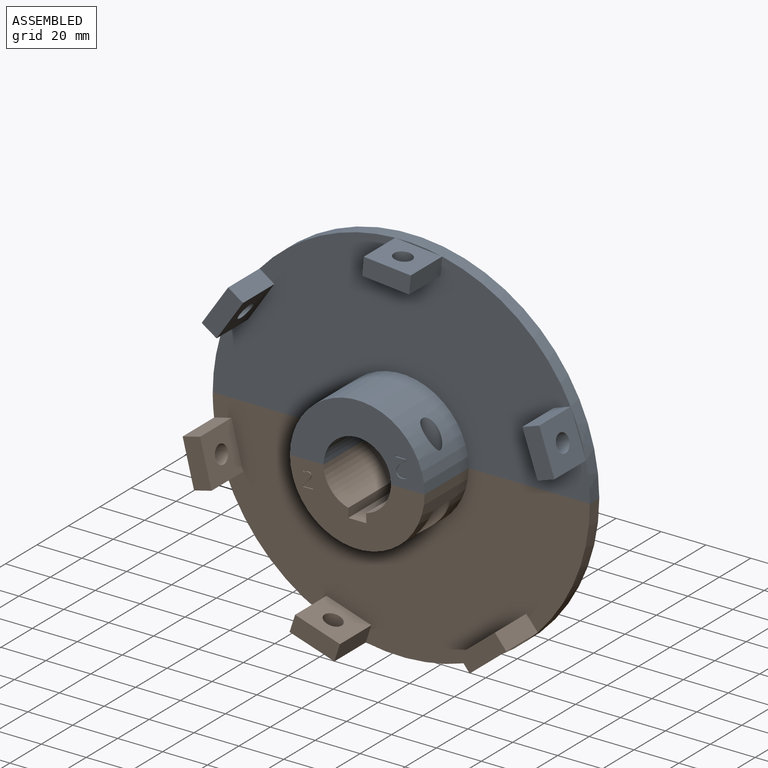
[diagram: assembled view]
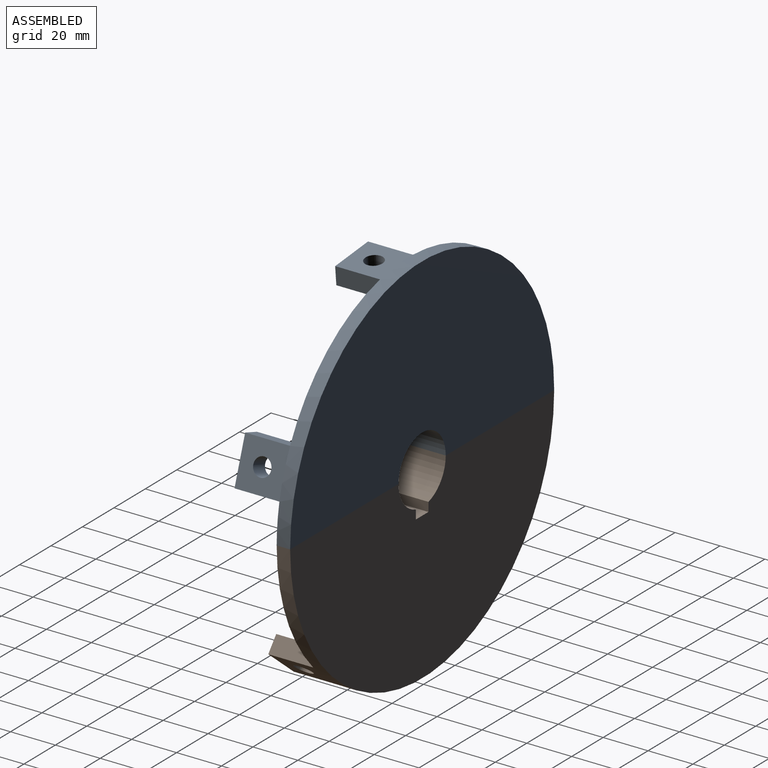
[diagram: assembled view, second angle]
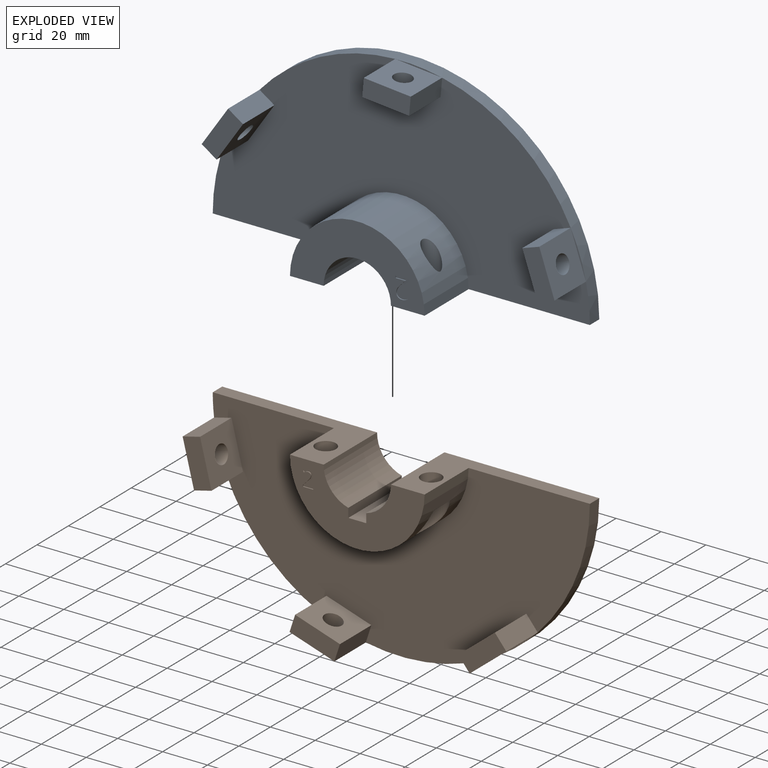
[diagram: exploded view]
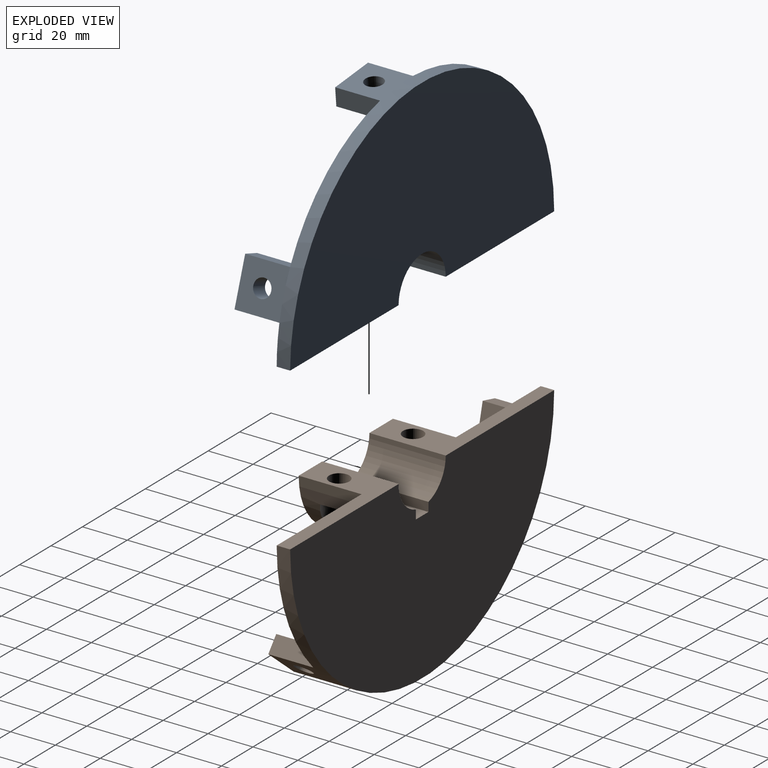
[diagram: exploded view, second angle]
ASSEMBLY  parts=2 mates=3
PART A: 52 faces, bbox 168x34x84 mm
  f0: plane 60x30mm, normal (0,-1,0), area 1043.2mm2, adj f1,f6,f8,f9,f31,f32,f33,f34
  f1: cylinder r=30mm len=60mm, axis (0,1,0), area 2471.2mm2, adj f0,f2,f6,f8,f29,f30
  f2: plane 168x83.96mm, normal (0,-1,0), area 9138.1mm2, adj f1,f6,f7,f8,f11,f13,f14,f16
  f3: plane 17.39x11.77mm, normal (0,-1,0), area 9.2mm2, adj f7,f22
  f4: plane 20.91x2mm, normal (0,-1,0), area 9.2mm2, adj f7,f17
  f5: plane 19.87x6.79mm, normal (0,-1,0), area 9.2mm2, adj f7,f12
  f6: plane 69x34mm, normal (0,0,1), area 783.7mm2, adj f0,f1,f2,f7,f9,f10,f29
  f7: cylinder r=84mm len=168mm, axis (0,1,0), area 1583.4mm2, adj f2,f3,f4,f5,f6,f8,f10
  f8: plane 69x34mm, normal (0,0,1), area 783.7mm2, adj f0,f1,f2,f7,f9,f10,f30
  f9: cylinder r=15mm len=34mm, axis (0,1,0), area 1602.2mm2, adj f0,f6,f8,f10
  f10: plane 168x84mm, normal (0,1,0), area 10730.1mm2, adj f6,f7,f8,f9
  f11: plane 20x7.57mm, normal (-0.32,0,0.95), area 160mm2, adj f2,f12,f14,f15
  f12: plane 20x19.87mm, normal (-0.95,0,-0.32), area 369.7mm2, adj f5,f11,f13,f15,f26
  f13: plane 20x7.57mm, normal (0.32,0,-0.95), area 160mm2, adj f2,f12,f14,f15
  f14: plane 20x19.87mm, normal (0.95,0,0.32), area 369.7mm2, adj f2,f11,f13,f15,f26
  f15: plane 22.46x14.36mm, normal (0,-1,0), area 168mm2, adj f11,f12,f13,f14
  f16: plane 20x7.97mm, normal (-1,0,0.09), area 160mm2, adj f2,f17,f19,f20
  f17: plane 20.91x20mm, normal (-0.09,0,-1), area 369.7mm2, adj f4,f16,f18,f20,f27
  f18: plane 20x7.97mm, normal (1,0,-0.09), area 160mm2, adj f2,f17,f19,f20
  f19: plane 20.91x20mm, normal (0.09,0,1), area 369.7mm2, adj f2,f16,f18,f20,f27
  f20: plane 21.65x9.92mm, normal (0,-1,0), area 168mm2, adj f16,f17,f18,f19
  f21: plane 20x6.63mm, normal (-0.56,0,-0.83), area 160mm2, adj f2,f22,f24,f25
  f22: plane 20x17.39mm, normal (0.83,0,-0.56), area 369.7mm2, adj f3,f21,f23,f25,f28
  f23: plane 20x6.63mm, normal (0.56,0,0.83), area 160mm2, adj f2,f22,f24,f25
  f24: plane 20x17.39mm, normal (-0.83,0,0.56), area 369.7mm2, adj f2,f21,f23,f25,f28
  f25: plane 21.88x18.39mm, normal (0,-1,0), area 168mm2, adj f21,f22,f23,f24
  f26: cylinder r=4mm len=10.16mm, axis (-0.95,0,-0.32), area 201.1mm2, adj f12,f14
  f27: cylinder r=4mm len=8.71mm, axis (-0.09,0,-1), area 201.1mm2, adj f17,f19
  f28: cylinder r=4mm len=11.11mm, axis (0.83,0,-0.56), area 201.1mm2, adj f22,f24
  f29: cylinder r=4mm len=22.8mm, axis (0,0,1), area 453.4mm2, adj f1,f6
  f30: cylinder r=4mm len=22.8mm, axis (0,0,1), area 453.4mm2, adj f1,f8
  f31: plane 5.79x0.5mm, normal (0,0,1), area 2.9mm2, adj f0,f32,f50,f51
  f32: plane 0.93x0.5mm, normal (-1,0,0), area 0.5mm2, adj f0,f31,f33,f51
  f33: plane 4.53x0.5mm, normal (0,0,-1), area 2.3mm2, adj f0,f32,f34,f51
  f34: plane 0.5x0.05mm, normal (-1,0,0), area 0mm2, adj f0,f33,f35,f51
  f35: plane 1.93x1.89mm, normal (-0.7,0,0.71), area 1.3mm2, adj f0,f34,f36,f51
  f36: extruded ~2.07x1.76mm, area 1.4mm2, adj f0,f35,f37,f51
  f37: extruded ~1.66x0.5mm, area 0.9mm2, adj f0,f36,f38,f51
  f38: extruded ~1.71x0.71mm, area 1mm2, adj f0,f37,f39,f51
  f39: extruded ~1.95x0.64mm, area 1mm2, adj f0,f38,f40,f51
  f40: extruded ~2.65x1.01mm, area 1.4mm2, adj f0,f39,f41,f51
  f41: plane 0.68x0.53mm, normal (0.79,0,0.61), area 0.4mm2, adj f0,f40,f42,f51
  f42: extruded ~1.09x0.66mm, area 0.6mm2, adj f0,f41,f43,f51
  f43: extruded ~1.04x0.5mm, area 0.5mm2, adj f0,f42,f44,f51
  f44: extruded ~1.19x0.5mm, area 0.6mm2, adj f0,f43,f45,f51
  f45: extruded ~1.12x0.5mm, area 0.6mm2, adj f0,f44,f46,f51
  f46: extruded ~0.93x0.5mm, area 0.5mm2, adj f0,f45,f47,f51
  f47: extruded ~0.89x0.51mm, area 0.5mm2, adj f0,f46,f48,f51
  f48: extruded ~1.53x1.4mm, area 1mm2, adj f0,f47,f49,f51
  f49: plane 2.33x2.32mm, normal (0.71,0,-0.71), area 1.6mm2, adj f0,f48,f50,f51
  f50: plane 0.86x0.5mm, normal (1,0,0), area 0.4mm2, adj f0,f31,f49,f51
  f51: plane 8.94x5.79mm, normal (0,-1,0), area 17.1mm2, adj f31,f32,f33,f34,f35,f36,f37,f38
PART B: 60 faces, bbox 168x34x84 mm
  f0: plane 60x30mm, normal (0,-1,0), area 1019.8mm2, adj f1,f6,f7,f9,f10,f11,f12,f13
  f1: cylinder r=30mm len=60mm, axis (0,1,0), area 2174.5mm2, adj f0,f2,f7,f9,f35,f36,f37,f38
  f2: plane 168x84mm, normal (0,-1,0), area 9138.1mm2, adj f1,f7,f8,f9,f15,f17,f18,f20
  f3: plane 16.29x13.26mm, normal (0,-1,0), area 9.2mm2, adj f8,f26
  f4: plane 19.97x6.5mm, normal (0,-1,0), area 9.2mm2, adj f8,f21
  f5: plane 20.37x5.09mm, normal (0,-1,0), area 9.2mm2, adj f8,f16
  f6: cylinder r=15mm len=34mm, axis (0,1,0), area 663.4mm2, adj f0,f7,f13,f14
  f7: plane 69x34mm, normal (0,0,1), area 770.4mm2, adj f0,f1,f2,f6,f8,f14,f33
  f8: cylinder r=84mm len=168mm, axis (0,1,0), area 1583.4mm2, adj f2,f3,f4,f5,f7,f9,f14
  f9: plane 69x34mm, normal (0,0,1), area 770.4mm2, adj f0,f1,f2,f8,f10,f14,f34
  f10: cylinder r=15mm len=34mm, axis (0,1,0), area 663.4mm2, adj f0,f9,f11,f14
  f11: plane 34x4.04mm, normal (-1,0,0), area 137.5mm2, adj f0,f10,f12,f14
  f12: plane 34x8mm, normal (0,0,1), area 272mm2, adj f0,f11,f13,f14
  f13: plane 34x4.04mm, normal (1,0,0), area 137.5mm2, adj f0,f6,f12,f14
  f14: plane 168x84mm, normal (0,1,0), area 10700.7mm2, adj f6,f7,f8,f9,f10,f11,f12,f13
  f15: plane 20x7.76mm, normal (-0.24,0,0.97), area 160mm2, adj f2,f16,f18,f19
  f16: plane 20.37x20mm, normal (-0.97,0,-0.24), area 369.7mm2, adj f5,f15,f17,f19,f30
  f17: plane 20x7.76mm, normal (0.24,0,-0.97), area 160mm2, adj f2,f16,f18,f19
  f18: plane 20.37x20mm, normal (0.97,0,0.24), area 369.7mm2, adj f2,f15,f17,f19,f30
  f19: plane 22.31x12.85mm, normal (0,-1,0), area 168mm2, adj f15,f16,f17,f18
  f20: plane 20x7.61mm, normal (-0.95,0,0.31), area 160mm2, adj f2,f21,f23,f24
  f21: plane 20x19.97mm, normal (-0.31,0,-0.95), area 369.7mm2, adj f4,f20,f22,f24,f31
  f22: plane 20x7.61mm, normal (0.95,0,-0.31), area 160mm2, adj f2,f21,f23,f24
  f23: plane 20x19.97mm, normal (0.31,0,0.95), area 369.7mm2, adj f2,f20,f22,f24,f31
  f24: plane 22.45x14.11mm, normal (0,-1,0), area 168mm2, adj f20,f21,f22,f23
  f25: plane 20x6.2mm, normal (-0.78,0,-0.63), area 160mm2, adj f2,f26,f28,f29
  f26: plane 20x16.29mm, normal (0.63,0,-0.78), area 369.7mm2, adj f3,f25,f27,f29,f32
  f27: plane 20x6.2mm, normal (0.78,0,0.63), area 160mm2, adj f2,f26,f28,f29
  f28: plane 20x16.29mm, normal (-0.63,0,0.78), area 369.7mm2, adj f2,f25,f27,f29,f32
  f29: plane 21.34x19.46mm, normal (0,-1,0), area 168mm2, adj f25,f26,f27,f28
  f30: cylinder r=4mm len=9.7mm, axis (-0.97,0,-0.24), area 201.1mm2, adj f16,f18
  f31: cylinder r=4mm len=10.08mm, axis (-0.31,0,-0.95), area 201.1mm2, adj f21,f23
  f32: cylinder r=4mm len=11.26mm, axis (0.63,0,-0.78), area 201.1mm2, adj f26,f28
  f33: cylinder r=4.5mm len=10mm, axis (0,0,1), area 282.7mm2, adj f7,f38
  f34: cylinder r=4.5mm len=10mm, axis (0,0,1), area 282.7mm2, adj f9,f36
  f35: cylinder r=7mm len=15.06mm, axis (0,0,1), area 335.2mm2, adj f1,f36
  f36: plane 14x11.78mm, normal (0,0,-1), area 74.7mm2, adj f1,f34,f35
  f37: cylinder r=7mm len=15.06mm, axis (0,0,1), area 335.1mm2, adj f1,f38
  f38: plane 14x11.78mm, normal (0,0,-1), area 74.7mm2, adj f1,f33,f37
  f39: plane 4.66x0.5mm, normal (0,0,1), area 2.3mm2, adj f0,f40,f58,f59
  f40: plane 0.75x0.5mm, normal (-1,0,0), area 0.4mm2, adj f0,f39,f41,f59
  f41: plane 3.65x0.5mm, normal (0,0,-1), area 1.8mm2, adj f0,f40,f42,f59
  f42: plane 0.5x0.04mm, normal (-1,0,0), area 0mm2, adj f0,f41,f43,f59
  f43: plane 1.55x1.52mm, normal (-0.7,0,0.71), area 1.1mm2, adj f0,f42,f44,f59
  f44: extruded ~1.67x1.42mm, area 1.1mm2, adj f0,f43,f45,f59
  f45: extruded ~1.34x0.5mm, area 0.7mm2, adj f0,f44,f46,f59
  f46: extruded ~1.38x0.57mm, area 0.8mm2, adj f0,f45,f47,f59
  f47: extruded ~1.57x0.51mm, area 0.8mm2, adj f0,f46,f48,f59
  f48: extruded ~2.14x0.82mm, area 1.2mm2, adj f0,f47,f49,f59
  f49: plane 0.55x0.5mm, normal (0.79,0,0.61), area 0.3mm2, adj f0,f48,f50,f59
  f50: extruded ~0.88x0.53mm, area 0.5mm2, adj f0,f49,f51,f59
  f51: extruded ~0.84x0.5mm, area 0.4mm2, adj f0,f50,f52,f59
  f52: extruded ~0.96x0.5mm, area 0.5mm2, adj f0,f51,f53,f59
  f53: extruded ~0.9x0.5mm, area 0.5mm2, adj f0,f52,f54,f59
  f54: extruded ~0.75x0.5mm, area 0.4mm2, adj f0,f53,f55,f59
  f55: extruded ~0.72x0.5mm, area 0.4mm2, adj f0,f54,f56,f59
  f56: extruded ~1.23x1.13mm, area 0.8mm2, adj f0,f55,f57,f59
  f57: plane 1.88x1.87mm, normal (0.71,0,-0.71), area 1.3mm2, adj f0,f56,f58,f59
  f58: plane 0.69x0.5mm, normal (1,0,0), area 0.3mm2, adj f0,f39,f57,f59
  f59: plane 7.2x4.66mm, normal (0,-1,0), area 11.1mm2, adj f39,f40,f41,f42,f43,f44,f45,f46
PLACE A rot(axis=(0,1,0),180deg) t=(-36.53,-44.18,-17.38)mm
PLACE B t=(-36.53,-44.18,-17.38)mm fixed
MATE slider A.f30 <-> B.f33  axis (0,0,-1) through (-60.03,-64.68,-17.38)mm
MATE cylindrical A.f29 <-> B.f34  axis (0,0,-1) through (-13.03,-64.68,-17.38)mm
MATE planar B.f9 <-> A.f6  axis (0,0,1) through (0.4,-55,-17.38)mm
